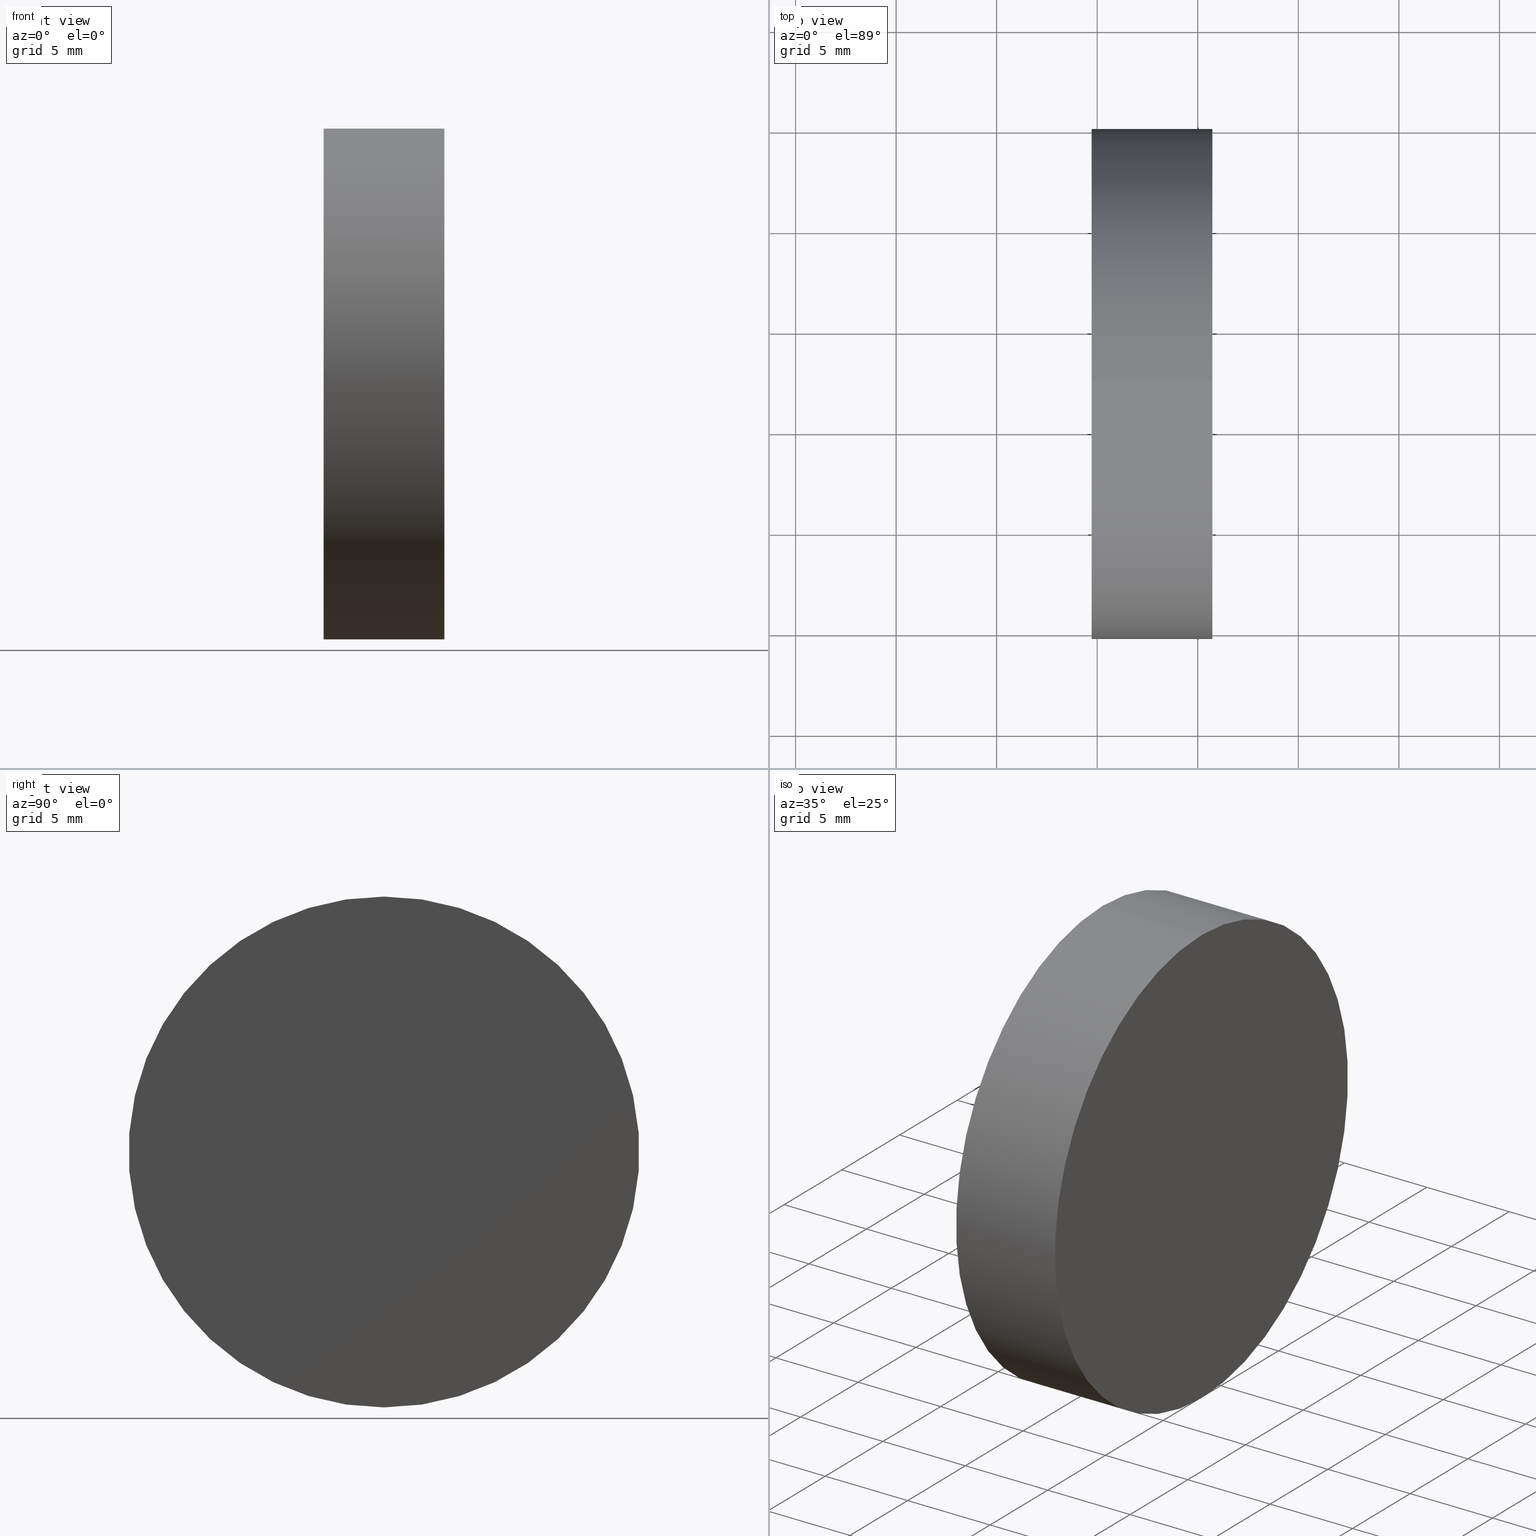
[diagram: canonical four-view strip — front | top / right | iso, engineering-drawing reading convention]
A machine part, canonical four-view strip (front | top / right | iso — engineering-drawing reading convention). The complete STEP part file that produces these views, byte-faithful:
ISO-10303-21;
HEADER;
FILE_DESCRIPTION (( 'STEP AP214' ),
    '1' );
FILE_NAME ('431014 (2).STEP',
    '2019-08-23T06:18:14',
    ( '' ),
    ( '' ),
    'SwSTEP 2.0',
    'SolidWorks 2016',
    '' );
FILE_SCHEMA (( 'AUTOMOTIVE_DESIGN' ));
ENDSEC;

DATA;
#1 = MECHANICAL_DESIGN_GEOMETRIC_PRESENTATION_REPRESENTATION (  '', ( #46 ), #52 ) ;
#2 = UNCERTAINTY_MEASURE_WITH_UNIT (LENGTH_MEASURE( 1.000000000000000100E-005 ), #64, 'distance_accuracy_value', 'NONE');
#3 = AXIS2_PLACEMENT_3D ( 'NONE', #63, #123, #103 ) ;
#4 = DIRECTION ( 'NONE',  ( -1.000000000000000000, -0.0000000000000000000, -0.0000000000000000000 ) ) ;
#5 = PRESENTATION_STYLE_ASSIGNMENT (( #38 ) ) ;
#6 =( NAMED_UNIT ( * ) PLANE_ANGLE_UNIT ( ) SI_UNIT ( $, .RADIAN. ) );
#7 = DIRECTION ( 'NONE',  ( -1.000000000000000000, -0.0000000000000000000, -0.0000000000000000000 ) ) ;
#8 = CIRCLE ( 'NONE', #140, 12.70000000000000300 ) ;
#9 =( NAMED_UNIT ( * ) SI_UNIT ( $, .STERADIAN. ) SOLID_ANGLE_UNIT ( ) );
#10 = ADVANCED_FACE ( 'NONE', ( #129 ), #93, .F. ) ;
#11 = PRODUCT_CONTEXT ( 'NONE', #121, 'mechanical' ) ;
#12 = ADVANCED_FACE ( 'NONE', ( #77 ), #81, .T. ) ;
#13 =( GEOMETRIC_REPRESENTATION_CONTEXT ( 3 ) GLOBAL_UNCERTAINTY_ASSIGNED_CONTEXT ( ( #39 ) ) GLOBAL_UNIT_ASSIGNED_CONTEXT ( ( #26, #35, #99 ) ) REPRESENTATION_CONTEXT ( 'NONE', 'WORKASPACE' ) );
#14 = CYLINDRICAL_SURFACE ( 'NONE', #30, 12.70000000000000300 ) ;
#15 = PLANE ( 'NONE',  #66 ) ;
#16 =( NAMED_UNIT ( * ) SI_UNIT ( $, .STERADIAN. ) SOLID_ANGLE_UNIT ( ) );
#17 = CARTESIAN_POINT ( 'NONE',  ( 259.7243528930642900, 77.29317934901541800, 0.0000000000000000000 ) ) ;
#18 = PRODUCT_DEFINITION_SHAPE ( 'NONE', 'NONE',  #27 ) ;
#19 = ORIENTED_EDGE ( 'NONE', *, *, #37, .T. ) ;
#20 = AXIS2_PLACEMENT_3D ( 'NONE', #110, #120, #113 ) ;
#21 = PRODUCT_DEFINITION_CONTEXT ( 'detailed design', #58, 'design' ) ;
#22 = AXIS2_PLACEMENT_3D ( 'NONE', #91, #62, #61 ) ;
#23 = EDGE_LOOP ( 'NONE', ( #87, #79 ) ) ;
#24 = DIRECTION ( 'NONE',  ( -1.000000000000000000, -0.0000000000000000000, -0.0000000000000000000 ) ) ;
#25 = ORIENTED_EDGE ( 'NONE', *, *, #59, .F. ) ;
#26 =( LENGTH_UNIT ( ) NAMED_UNIT ( * ) SI_UNIT ( .MILLI., .METRE. ) );
#27 = PRODUCT_DEFINITION ( 'δ֪', '', #90, #21 ) ;
#28 = DIRECTION ( 'NONE',  ( 0.0000000000000000000, 0.0000000000000000000, 1.000000000000000000 ) ) ;
#29 = ORIENTED_EDGE ( 'NONE', *, *, #122, .F. ) ;
#30 = AXIS2_PLACEMENT_3D ( 'NONE', #102, #94, #28 ) ;
#31 = STYLED_ITEM ( 'NONE', ( #5 ), #114 ) ;
#32 = SURFACE_SIDE_STYLE ('',( #34 ) ) ;
#33 = ADVANCED_FACE ( 'NONE', ( #75 ), #14, .T. ) ;
#34 = SURFACE_STYLE_FILL_AREA ( #118 ) ;
#35 =( NAMED_UNIT ( * ) PLANE_ANGLE_UNIT ( ) SI_UNIT ( $, .RADIAN. ) );
#36 = PRODUCT ( '431014 (2)', '431014 (2)', '', ( #11 ) ) ;
#37 = EDGE_CURVE ( 'NONE', #139, #42, #47, .T. ) ;
#38 = SURFACE_STYLE_USAGE ( .BOTH. , #32 ) ;
#39 = UNCERTAINTY_MEASURE_WITH_UNIT (LENGTH_MEASURE( 1.000000000000000100E-005 ), #26, 'distance_accuracy_value', 'NONE');
#40 = CIRCLE ( 'NONE', #131, 12.70000000000000300 ) ;
#41 = CARTESIAN_POINT ( 'NONE',  ( 265.7243528930642900, 77.29317934901541800, 0.0000000000000000000 ) ) ;
#42 = VERTEX_POINT ( 'NONE', #135 ) ;
#43 = EDGE_CURVE ( 'NONE', #50, #45, #126, .T. ) ;
#44 = VECTOR ( 'NONE', #24, 1000.000000000000000 ) ;
#45 = VERTEX_POINT ( 'NONE', #71 ) ;
#46 = STYLED_ITEM ( 'NONE', ( #138 ), #53 ) ;
#47 = CIRCLE ( 'NONE', #55, 12.70000000000000300 ) ;
#48 = PRODUCT_RELATED_PRODUCT_CATEGORY ( 'part', '', ( #36 ) ) ;
#49 = APPLICATION_PROTOCOL_DEFINITION ( 'draft international standard', 'automotive_design', 1998, #121 ) ;
#50 = VERTEX_POINT ( 'NONE', #92 ) ;
#51 = AXIS2_PLACEMENT_3D ( 'NONE', #84, #4, #106 ) ;
#52 =( GEOMETRIC_REPRESENTATION_CONTEXT ( 3 ) GLOBAL_UNCERTAINTY_ASSIGNED_CONTEXT ( ( #2 ) ) GLOBAL_UNIT_ASSIGNED_CONTEXT ( ( #64, #6, #16 ) ) REPRESENTATION_CONTEXT ( 'NONE', 'WORKASPACE' ) );
#53 = MANIFOLD_SOLID_BREP ( '��ת1', #109 ) ;
#54 = ORIENTED_EDGE ( 'NONE', *, *, #128, .T. ) ;
#55 = AXIS2_PLACEMENT_3D ( 'NONE', #136, #100, #101 ) ;
#56 =( LENGTH_UNIT ( ) NAMED_UNIT ( * ) SI_UNIT ( .MILLI., .METRE. ) );
#57 = CARTESIAN_POINT ( 'NONE',  ( 265.7243528930642900, 77.29317934901541800, -12.70000000000000300 ) ) ;
#58 = APPLICATION_CONTEXT ( 'automotive_design' ) ;
#59 = EDGE_CURVE ( 'NONE', #45, #50, #40, .T. ) ;
#60 = CARTESIAN_POINT ( 'NONE',  ( 265.7243528930642900, 77.29317934901541800, 0.0000000000000000000 ) ) ;
#61 = DIRECTION ( 'NONE',  ( 0.0000000000000000000, 0.0000000000000000000, 1.000000000000000000 ) ) ;
#62 = DIRECTION ( 'NONE',  ( -1.000000000000000000, -0.0000000000000000000, -0.0000000000000000000 ) ) ;
#63 = CARTESIAN_POINT ( 'NONE',  ( 259.7243528930642900, 77.29317934901541800, 0.0000000000000000000 ) ) ;
#64 =( LENGTH_UNIT ( ) NAMED_UNIT ( * ) SI_UNIT ( .MILLI., .METRE. ) );
#65 = COLOUR_RGB ( '',1.000000000000000000, 1.000000000000000000, 1.000000000000000000 ) ;
#66 = AXIS2_PLACEMENT_3D ( 'NONE', #41, #97, #125 ) ;
#67 =( NAMED_UNIT ( * ) PLANE_ANGLE_UNIT ( ) SI_UNIT ( $, .RADIAN. ) );
#68 = ADVANCED_FACE ( 'NONE', ( #127 ), #15, .F. ) ;
#69 = PRESENTATION_LAYER_ASSIGNMENT (  '', '', ( #46 ) ) ;
#70 = LINE ( 'NONE', #137, #124 ) ;
#71 = CARTESIAN_POINT ( 'NONE',  ( 259.7243528930642900, 77.29317934901541800, 12.70000000000000300 ) ) ;
#72 = DIRECTION ( 'NONE',  ( -1.000000000000000000, -0.0000000000000000000, -0.0000000000000000000 ) ) ;
#73 = EDGE_LOOP ( 'NONE', ( #112, #54, #25, #86 ) ) ;
#74 = SURFACE_STYLE_USAGE ( .BOTH. , #95 ) ;
#75 = FACE_OUTER_BOUND ( 'NONE', #119, .T. ) ;
#76 = PRESENTATION_LAYER_ASSIGNMENT (  '', '', ( #31 ) ) ;
#77 = FACE_OUTER_BOUND ( 'NONE', #73, .T. ) ;
#78 = COLOUR_RGB ( '',1.000000000000000000, 1.000000000000000000, 1.000000000000000000 ) ;
#79 = ORIENTED_EDGE ( 'NONE', *, *, #43, .T. ) ;
#80 = UNCERTAINTY_MEASURE_WITH_UNIT (LENGTH_MEASURE( 1.000000000000000100E-005 ), #56, 'distance_accuracy_value', 'NONE');
#81 = CYLINDRICAL_SURFACE ( 'NONE', #22, 12.70000000000000300 ) ;
#82 = ORIENTED_EDGE ( 'NONE', *, *, #128, .F. ) ;
#83 = MECHANICAL_DESIGN_GEOMETRIC_PRESENTATION_REPRESENTATION (  '', ( #31 ), #88 ) ;
#84 = CARTESIAN_POINT ( 'NONE',  ( 259.7243528930642900, 77.29317934901541800, 0.0000000000000000000 ) ) ;
#85 = FILL_AREA_STYLE_COLOUR ( '', #78 ) ;
#86 = ORIENTED_EDGE ( 'NONE', *, *, #116, .F. ) ;
#87 = ORIENTED_EDGE ( 'NONE', *, *, #59, .T. ) ;
#88 =( GEOMETRIC_REPRESENTATION_CONTEXT ( 3 ) GLOBAL_UNCERTAINTY_ASSIGNED_CONTEXT ( ( #80 ) ) GLOBAL_UNIT_ASSIGNED_CONTEXT ( ( #56, #67, #9 ) ) REPRESENTATION_CONTEXT ( 'NONE', 'WORKASPACE' ) );
#89 = CARTESIAN_POINT ( 'NONE',  ( 254.0008019926160300, 77.29317934901541800, -12.70000000000000300 ) ) ;
#90 = PRODUCT_DEFINITION_FORMATION_WITH_SPECIFIED_SOURCE ( '�κ�', '', #36, .NOT_KNOWN. ) ;
#91 = CARTESIAN_POINT ( 'NONE',  ( 254.0008019926160300, 77.29317934901541800, 0.0000000000000000000 ) ) ;
#92 = CARTESIAN_POINT ( 'NONE',  ( 259.7243528930642900, 77.29317934901541800, -12.70000000000000300 ) ) ;
#93 = PLANE ( 'NONE',  #3 ) ;
#94 = DIRECTION ( 'NONE',  ( -1.000000000000000000, -0.0000000000000000000, -0.0000000000000000000 ) ) ;
#95 = SURFACE_SIDE_STYLE ('',( #108 ) ) ;
#96 = ORIENTED_EDGE ( 'NONE', *, *, #37, .F. ) ;
#97 = DIRECTION ( 'NONE',  ( -1.000000000000000000, 0.0000000000000000000, -0.0000000000000000000 ) ) ;
#98 = LINE ( 'NONE', #89, #44 ) ;
#99 =( NAMED_UNIT ( * ) SI_UNIT ( $, .STERADIAN. ) SOLID_ANGLE_UNIT ( ) );
#100 = DIRECTION ( 'NONE',  ( -1.000000000000000000, -0.0000000000000000000, -0.0000000000000000000 ) ) ;
#101 = DIRECTION ( 'NONE',  ( 0.0000000000000000000, 0.0000000000000000000, 1.000000000000000000 ) ) ;
#102 = CARTESIAN_POINT ( 'NONE',  ( 254.0008019926160300, 77.29317934901541800, 0.0000000000000000000 ) ) ;
#103 = DIRECTION ( 'NONE',  ( 0.0000000000000000000, 0.0000000000000000000, -1.000000000000000000 ) ) ;
#104 = EDGE_LOOP ( 'NONE', ( #29, #96 ) ) ;
#105 = FILL_AREA_STYLE ('',( #85 ) ) ;
#106 = DIRECTION ( 'NONE',  ( 0.0000000000000000000, 0.0000000000000000000, 1.000000000000000000 ) ) ;
#107 = ORIENTED_EDGE ( 'NONE', *, *, #116, .T. ) ;
#108 = SURFACE_STYLE_FILL_AREA ( #105 ) ;
#109 = CLOSED_SHELL ( 'NONE', ( #12, #68, #33, #10 ) ) ;
#110 = CARTESIAN_POINT ( 'NONE',  ( 0.0000000000000000000, 0.0000000000000000000, 0.0000000000000000000 ) ) ;
#111 = DIRECTION ( 'NONE',  ( -1.000000000000000000, -0.0000000000000000000, -0.0000000000000000000 ) ) ;
#112 = ORIENTED_EDGE ( 'NONE', *, *, #122, .T. ) ;
#113 = DIRECTION ( 'NONE',  ( 1.000000000000000000, 0.0000000000000000000, 0.0000000000000000000 ) ) ;
#114 = ADVANCED_BREP_SHAPE_REPRESENTATION ( '431014 (2)', ( #53, #20 ), #13 ) ;
#115 = DIRECTION ( 'NONE',  ( 0.0000000000000000000, 0.0000000000000000000, 1.000000000000000000 ) ) ;
#116 = EDGE_CURVE ( 'NONE', #42, #45, #70, .T. ) ;
#117 = SHAPE_DEFINITION_REPRESENTATION ( #18, #114 ) ;
#118 = FILL_AREA_STYLE ('',( #134 ) ) ;
#119 = EDGE_LOOP ( 'NONE', ( #82, #19, #107, #133 ) ) ;
#120 = DIRECTION ( 'NONE',  ( 0.0000000000000000000, 0.0000000000000000000, 1.000000000000000000 ) ) ;
#121 = APPLICATION_CONTEXT ( 'automotive_design' ) ;
#122 = EDGE_CURVE ( 'NONE', #42, #139, #8, .T. ) ;
#123 = DIRECTION ( 'NONE',  ( 1.000000000000000000, 0.0000000000000000000, 0.0000000000000000000 ) ) ;
#124 = VECTOR ( 'NONE', #7, 1000.000000000000000 ) ;
#125 = DIRECTION ( 'NONE',  ( -0.0000000000000000000, 0.0000000000000000000, 1.000000000000000000 ) ) ;
#126 = CIRCLE ( 'NONE', #51, 12.70000000000000300 ) ;
#127 = FACE_OUTER_BOUND ( 'NONE', #104, .T. ) ;
#128 = EDGE_CURVE ( 'NONE', #139, #50, #98, .T. ) ;
#129 = FACE_OUTER_BOUND ( 'NONE', #23, .T. ) ;
#130 = APPLICATION_PROTOCOL_DEFINITION ( 'draft international standard', 'automotive_design', 1998, #58 ) ;
#131 = AXIS2_PLACEMENT_3D ( 'NONE', #17, #72, #115 ) ;
#132 = DIRECTION ( 'NONE',  ( 0.0000000000000000000, 0.0000000000000000000, 1.000000000000000000 ) ) ;
#133 = ORIENTED_EDGE ( 'NONE', *, *, #43, .F. ) ;
#134 = FILL_AREA_STYLE_COLOUR ( '', #65 ) ;
#135 = CARTESIAN_POINT ( 'NONE',  ( 265.7243528930642900, 77.29317934901541800, 12.70000000000000300 ) ) ;
#136 = CARTESIAN_POINT ( 'NONE',  ( 265.7243528930642900, 77.29317934901541800, 0.0000000000000000000 ) ) ;
#137 = CARTESIAN_POINT ( 'NONE',  ( 254.0008019926160300, 77.29317934901541800, 12.70000000000000300 ) ) ;
#138 = PRESENTATION_STYLE_ASSIGNMENT (( #74 ) ) ;
#139 = VERTEX_POINT ( 'NONE', #57 ) ;
#140 = AXIS2_PLACEMENT_3D ( 'NONE', #60, #111, #132 ) ;
ENDSEC;
END-ISO-10303-21;
